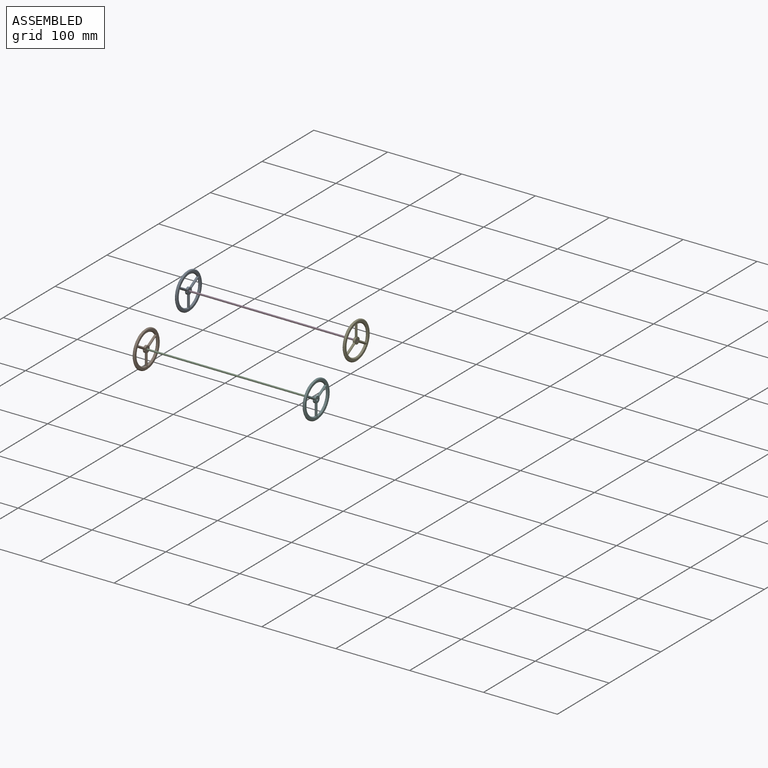
[diagram: assembled view]
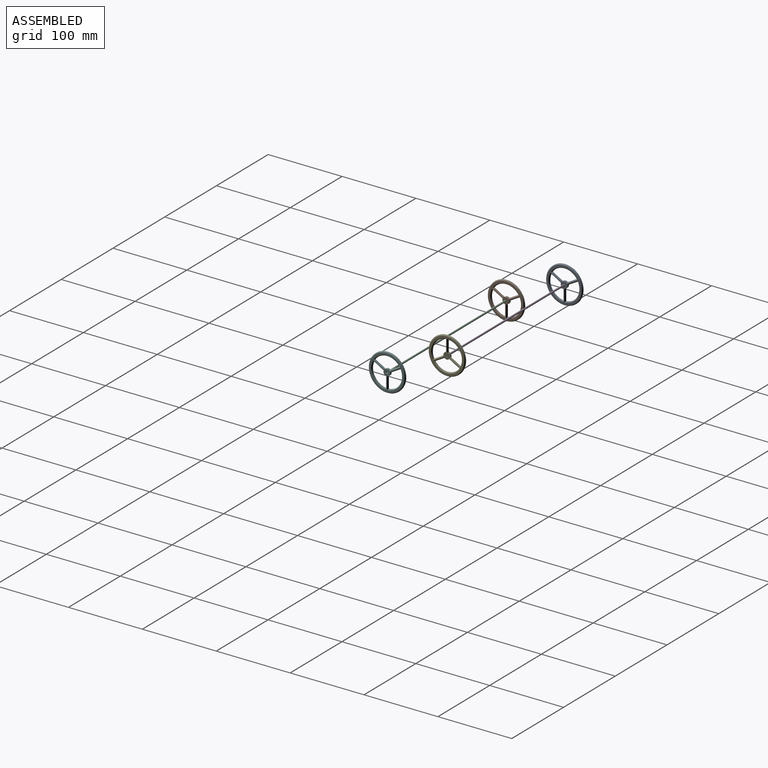
[diagram: assembled view, second angle]
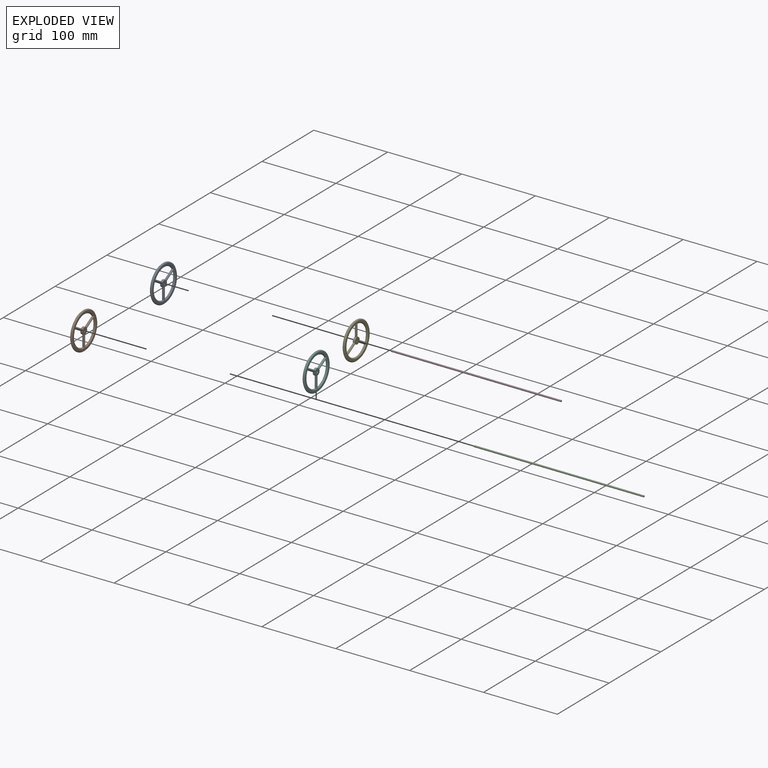
[diagram: exploded view]
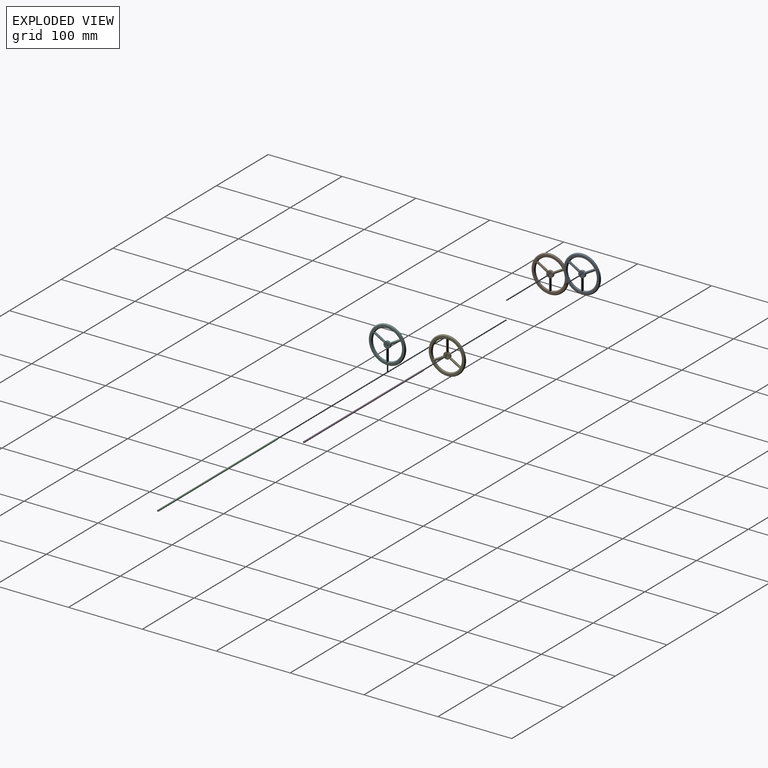
[diagram: exploded view, second angle]
ASSEMBLY  parts=6 mates=4
PART A: 36 faces, bbox 50x50x3 mm
  f0: plane 15.7x1mm, normal (0,1,0), area 15.7mm2, adj f1,f10,f23,f29
  f1: cylinder r=20mm len=28.62mm, axis (0,0,-1), area 38.9mm2, adj f0,f2,f24,f30
  f2: plane 13.6x7.85mm, normal (-0.87,0.5,0), area 15.7mm2, adj f1,f10,f22,f28
  f3: cylinder r=20mm len=28.62mm, axis (0,0,-1), area 38.9mm2, adj f4,f11,f21,f33
  f4: plane 15.7x1mm, normal (0,-1,0), area 15.7mm2, adj f3,f5,f19,f31
  f5: cylinder r=4.5mm len=6.28mm, axis (0,0,-1), area 21.2mm2, adj f4,f11,f14,f15,f19,f20,f31,f32
  f6: cylinder r=20mm len=33.04mm, axis (0,0,-1), area 38.9mm2, adj f7,f12,f18,f27
  f7: plane 13.6x7.85mm, normal (0.87,0.5,0), area 15.7mm2, adj f6,f8,f16,f25
  f8: cylinder r=4.5mm len=7.25mm, axis (0,0,-1), area 21.2mm2, adj f7,f12,f14,f15,f16,f17,f25,f26
  f9: cylinder r=25mm len=50mm, axis (0,0,-1), area 157.1mm2, adj f34,f35
  f10: cylinder r=4.5mm len=6.28mm, axis (0,0,-1), area 21.2mm2, adj f0,f2,f14,f15,f22,f23,f28,f29
  f11: plane 13.6x7.85mm, normal (-0.87,-0.5,0), area 15.7mm2, adj f3,f5,f20,f32
  f12: plane 13.6x7.85mm, normal (0.87,-0.5,0), area 15.7mm2, adj f6,f8,f17,f26
  f13: cylinder r=1.5mm len=3mm, axis (0,0,-1), area 28.3mm2, adj f14,f15
  f14: plane 48x48mm, normal (0,0,1), area 530.2mm2, adj f5,f8,f10,f13,f25,f26,f27,f28
  f15: plane 48x48mm, normal (0,0,-1), area 530.2mm2, adj f5,f8,f10,f13,f16,f17,f18,f19
  f16: plane 15.02x8.62mm, normal (0.61,0.35,-0.71), area 22.8mm2, adj f7,f8,f15,f18
  f17: plane 15.02x8.62mm, normal (0.61,-0.35,-0.71), area 22.8mm2, adj f8,f12,f15,f18
  f18: cone r=21mm half-angle=45deg, axis (0,0,-1), area 57.9mm2, adj f6,f15,f16,f17
  f19: plane 16.76x1.01mm, normal (0,-0.71,-0.71), area 22.8mm2, adj f4,f5,f15,f21
  f20: plane 14.32x9.25mm, normal (-0.61,-0.35,-0.71), area 22.8mm2, adj f5,f11,f15,f21
  f21: cone r=21mm half-angle=45deg, axis (0,0,-1), area 57.9mm2, adj f3,f15,f19,f20
  f22: plane 14.32x9.25mm, normal (-0.61,0.35,-0.71), area 22.8mm2, adj f2,f10,f15,f24
  f23: plane 16.76x1.01mm, normal (0,0.71,-0.71), area 22.8mm2, adj f0,f10,f15,f24
  f24: cone r=21mm half-angle=45deg, axis (0,0,-1), area 57.9mm2, adj f1,f15,f22,f23
  f25: plane 15.02x8.62mm, normal (0.61,0.35,0.71), area 22.8mm2, adj f7,f8,f14,f27
  f26: plane 15.02x8.62mm, normal (0.61,-0.35,0.71), area 22.8mm2, adj f8,f12,f14,f27
  f27: cone r=20mm half-angle=45deg, axis (0,0,1), area 57.9mm2, adj f6,f14,f25,f26
  f28: plane 14.32x9.25mm, normal (-0.61,0.35,0.71), area 22.8mm2, adj f2,f10,f14,f30
  f29: plane 16.76x1.01mm, normal (0,0.71,0.71), area 22.8mm2, adj f0,f10,f14,f30
  f30: cone r=20mm half-angle=45deg, axis (0,0,1), area 57.9mm2, adj f1,f14,f28,f29
  f31: plane 16.76x1.01mm, normal (0,-0.71,0.71), area 22.8mm2, adj f4,f5,f14,f33
  f32: plane 14.32x9.25mm, normal (-0.61,-0.35,0.71), area 22.8mm2, adj f5,f11,f14,f33
  f33: cone r=20mm half-angle=45deg, axis (0,0,1), area 57.9mm2, adj f3,f14,f31,f32
  f34: cone r=25mm half-angle=45deg, axis (0,0,1), area 217.7mm2, adj f9,f15
  f35: cone r=24mm half-angle=45deg, axis (0,0,-1), area 217.7mm2, adj f9,f14
PART B: same geometry as A
PART C: 3 faces, bbox 230x2.3x2.3 mm
  f0: cylinder r=1.15mm len=230mm, axis (-1,0,0), area 1661.9mm2, adj f1,f2
  f1: plane 2.3x2.3mm, normal (1,0,0), area 4.2mm2, adj f0
  f2: plane 2.3x2.3mm, normal (-1,0,0), area 4.2mm2, adj f0
PART D: same geometry as C
PART E: same geometry as A
PART F: same geometry as A
PLACE A rot(axis=(0,-1,0),90deg) t=(15.87,51.73,22.25)mm
PLACE B rot(axis=(0,-1,0),90deg) t=(14.6,-28.09,-18.91)mm
PLACE C t=(11.6,-28.09,-18.91)mm
PLACE D t=(12.87,51.73,22.25)mm
PLACE E rot(axis=(0,1,0),90deg) t=(239.87,51.73,22.25)mm
PLACE F rot(axis=(0,-1,0),90deg) t=(244.6,-28.09,-18.91)mm
MATE revolute A.f13 <-> D.f0  axis (-1,0,0) through (12.87,51.73,22.25)mm
MATE revolute F.f8 <-> C.f0  axis (1,0,0) through (241.6,-28.09,-18.91)mm
MATE revolute E.f13 <-> D.f0  axis (1,0,0) through (242.87,51.73,22.25)mm
MATE revolute B.f13 <-> C.f0  axis (-1,0,0) through (11.6,-28.09,-18.91)mm
